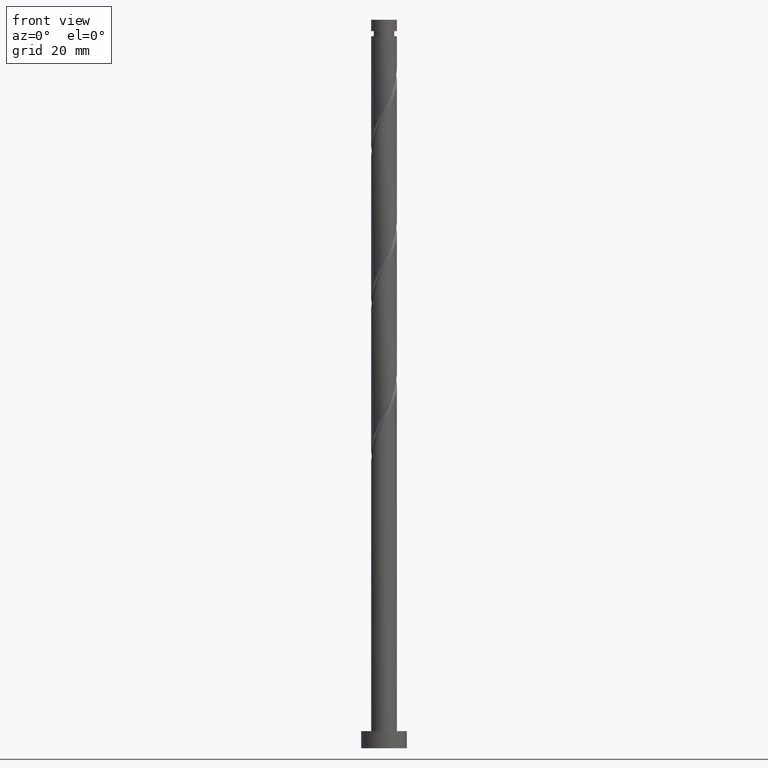
[diagram: clean part render]
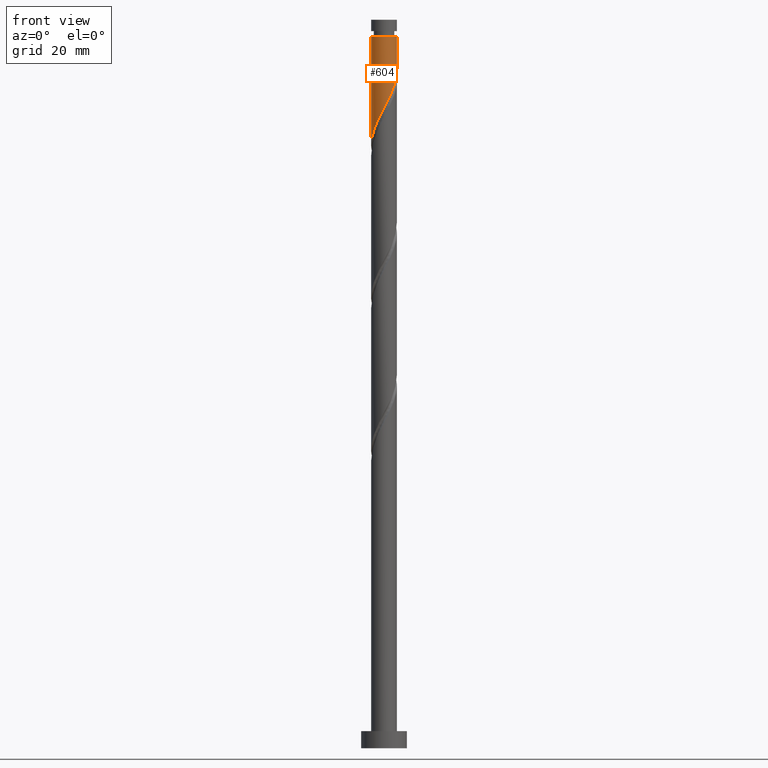
[diagram: same view with one face highlighted and labeled with its STEP entity id]
A machine part, front view. The second image highlights one B-rep face of the part: STEP entity #604.
In plain terms, the highlighted cylindrical surface (edge-blend (fillet) strip) has radius 2.25 mm, axis along (-0, -0, -1).
Its self-contained STEP definition (entity closure, byte-faithful):
#2 = CARTESIAN_POINT ( 'NONE',  ( 2.250000000000000000, -0.06474493467859734896, 118.4709337923257380 ) ) ;
#10 = CARTESIAN_POINT ( 'NONE',  ( 2.227674514516370330, -0.4523486032461999651, 117.7435773177430605 ) ) ;
#21 = CARTESIAN_POINT ( 'NONE',  ( 2.009996715602341499, -1.061633743224247750, 116.5314561056218565 ) ) ;
#28 = VERTEX_POINT ( 'NONE', #584 ) ;
#37 = CARTESIAN_POINT ( 'NONE',  ( 2.249999999999999556, 6.281864695468536464E-16, 118.5930317970439347 ) ) ;
#49 = CARTESIAN_POINT ( 'NONE',  ( 2.249999999999996891, 2.755455298081542313E-16, 124.4102439844097034 ) ) ;
#86 = DIRECTION ( 'NONE',  ( -1.000000000000000000, 0.000000000000000000, 0.000000000000000000 ) ) ;
#111 = CARTESIAN_POINT ( 'NONE',  ( 0.5139386748451190146, -2.214276414538837390, 112.8950924692581879 ) ) ;
#117 = CARTESIAN_POINT ( 'NONE',  ( -1.336880199978458528, -1.838451612741028196, 109.2587288328945760 ) ) ;
#126 = CARTESIAN_POINT ( 'NONE',  ( -2.118597173968805425, -0.8238319100010157436, 106.8344864086521113 ) ) ;
#243 = CARTESIAN_POINT ( 'NONE',  ( -1.568779515954457082, -1.612895170282835799, 108.6526682268339670 ) ) ;
#270 = CARTESIAN_POINT ( 'NONE',  ( -1.050827842467676909, -1.989537847213448618, 109.8647894389551851 ) ) ;
#337 = DIRECTION ( 'NONE',  ( -1.000000000000000000, 0.000000000000000000, 0.000000000000000000 ) ) ;
#373 = ORIENTED_EDGE ( 'NONE', *, *, #993, .F. ) ;
#489 = EDGE_CURVE ( 'NONE', #1416, #590, #923, .T. ) ;
#503 = CARTESIAN_POINT ( 'NONE',  ( 2.118835615059355248, -0.7569911732352238021, 117.1375167116824230 ) ) ;
#509 = CARTESIAN_POINT ( 'NONE',  ( -2.191738273361774958, -0.5087075201735710150, 106.2284258025915165 ) ) ;
#518 = CARTESIAN_POINT ( 'NONE',  ( 1.819738826151650724, -1.323272687164747330, 115.9253954995612190 ) ) ;
#526 = CARTESIAN_POINT ( 'NONE',  ( 0.1916127332030271024, -2.241826166426482914, 112.2890318631975788 ) ) ;
#532 = EDGE_LOOP ( 'NONE', ( #759, #1579, #1483, #373 ) ) ;
#577 = VECTOR ( 'NONE', #1162, 1000.000000000000000 ) ;
#584 = CARTESIAN_POINT ( 'NONE',  ( -2.249999999999999556, 8.286078669737068893E-15, 105.2596984637105919 ) ) ;
#590 = VERTEX_POINT ( 'NONE', #1621 ) ;
#604 = ADVANCED_FACE ( 'NONE', ( #714 ), #1500, .T. ) ;
#657 = CARTESIAN_POINT ( 'NONE',  ( -1.800678831930455193, -1.387338727824644069, 108.0466076207733295 ) ) ;
#694 =( BOUNDED_CURVE ( )  B_SPLINE_CURVE ( 2, ( #770, #2, #1035, #10, #503, #21, #518, #877, #1027, #1043, #756, #111, #526, #1018, #762, #883, #270, #117, #243, #657, #1547, #126, #509, #1394, #1538 ),
 .UNSPECIFIED., .F., .T. ) 
 B_SPLINE_CURVE_WITH_KNOTS ( ( 3, 2, 2, 2, 2, 2, 2, 2, 2, 2, 2, 2, 3 ),
 ( 0.3045252162417512176, 0.3068181818181818232, 0.3181818181818181768, 0.3295454545454545303, 0.3409090909090908839, 0.3522727272727272929, 0.3636363636363636465, 0.3750000000000000000, 0.3863636363636363535, 0.3977272727272727071, 0.4090909090909091161, 0.4204545454545454697, 0.4295252162417514397 ),
 .UNSPECIFIED. ) 
 CURVE ( )  GEOMETRIC_REPRESENTATION_ITEM ( )  RATIONAL_B_SPLINE_CURVE ( ( 0.9061101570135541294, 0.9072237824201363487, 0.9090909090909138346, 0.8998376744372161840, 0.9090909090909138346, 0.8998376744372161840, 0.9090909090909138346, 0.8998376744372161840, 0.9090909090909138346, 0.8998376744372161840, 0.9090909090909138346, 0.8998376744372161840, 0.9090909090909138346, 0.8998376744372161840, 0.9090909090909138346, 0.8998376744372161840, 0.9090909090909138346, 0.8998376744372161840, 0.9090909090909138346, 0.8998376744372161840, 0.9090909090909138346, 0.8998376744372161840, 0.9090909090909138346, 0.9017048011079935588, 0.9061101570135543515 ) ) 
 REPRESENTATION_ITEM ( '' )  );
#703 = EDGE_CURVE ( 'NONE', #590, #28, #1644, .T. ) ;
#714 = FACE_OUTER_BOUND ( 'NONE', #532, .T. ) ;
#756 = CARTESIAN_POINT ( 'NONE',  ( 0.8154464890247281605, -2.097032909502672293, 113.5011530753188111 ) ) ;
#759 = ORIENTED_EDGE ( 'NONE', *, *, #1087, .F. ) ;
#762 = CARTESIAN_POINT ( 'NONE',  ( -0.4477443466979794118, -2.204999999999999627, 111.0769106510763748 ) ) ;
#770 = CARTESIAN_POINT ( 'NONE',  ( 2.249999999999999556, 6.281864695468536464E-16, 118.5930317970439205 ) ) ;
#847 = DIRECTION ( 'NONE',  ( -0.000000000000000000, -0.000000000000000000, -1.000000000000000000 ) ) ;
#861 = DIRECTION ( 'NONE',  ( -0.000000000000000000, -0.000000000000000000, -1.000000000000000000 ) ) ;
#877 = CARTESIAN_POINT ( 'NONE',  ( 1.629480936700959504, -1.584911631105246910, 115.3193348935006242 ) ) ;
#883 = CARTESIAN_POINT ( 'NONE',  ( -0.7647754849568952906, -2.140624081685869928, 110.4708500450157942 ) ) ;
#923 = CIRCLE ( 'NONE', #1646, 2.249999999999996891 ) ;
#956 = VECTOR ( 'NONE', #1253, 1000.000000000000000 ) ;
#993 = EDGE_CURVE ( 'NONE', #1428, #28, #694, .T. ) ;
#1018 = CARTESIAN_POINT ( 'NONE',  ( -0.1307132084390636162, -2.269375918314129326, 111.6829712571369839 ) ) ;
#1027 = CARTESIAN_POINT ( 'NONE',  ( 1.373217619952648016, -1.782350517785876720, 114.7132742874400293 ) ) ;
#1035 = CARTESIAN_POINT ( 'NONE',  ( 2.246276943635557188, -0.1293827364500369226, 118.3496379238036553 ) ) ;
#1043 = CARTESIAN_POINT ( 'NONE',  ( 1.116954303204337640, -1.979789404466506308, 114.1072136813794060 ) ) ;
#1087 = EDGE_CURVE ( 'NONE', #1416, #1428, #1645, .T. ) ;
#1097 = CARTESIAN_POINT ( 'NONE',  ( 0.000000000000000000, 0.000000000000000000, 124.4102439844097034 ) ) ;
#1162 = DIRECTION ( 'NONE',  ( -0.000000000000000000, -0.000000000000000000, -1.000000000000000000 ) ) ;
#1224 = AXIS2_PLACEMENT_3D ( 'NONE', #1484, #847, #337 ) ;
#1253 = DIRECTION ( 'NONE',  ( -0.000000000000000000, -0.000000000000000000, -1.000000000000000000 ) ) ;
#1294 = CARTESIAN_POINT ( 'NONE',  ( 2.250000000000000000, 2.755455298081544285E-16, 127.2999999999999972 ) ) ;
#1394 = CARTESIAN_POINT ( 'NONE',  ( -2.250000000000000444, -0.2576900866165238169, 105.7456584166819056 ) ) ;
#1416 = VERTEX_POINT ( 'NONE', #49 ) ;
#1428 = VERTEX_POINT ( 'NONE', #37 ) ;
#1483 = ORIENTED_EDGE ( 'NONE', *, *, #703, .T. ) ;
#1484 = CARTESIAN_POINT ( 'NONE',  ( 0.000000000000000000, 0.000000000000000000, 127.2999999999999972 ) ) ;
#1500 = CYLINDRICAL_SURFACE ( 'NONE', #1224, 2.250000000000000000 ) ;
#1507 = CARTESIAN_POINT ( 'NONE',  ( -2.250000000000000000, 0.000000000000000000, 127.2999999999999972 ) ) ;
#1538 = CARTESIAN_POINT ( 'NONE',  ( -2.249999999999999556, 8.286078669737070471E-15, 105.2596984637105919 ) ) ;
#1547 = CARTESIAN_POINT ( 'NONE',  ( -1.959638002949629865, -1.105585318912829518, 107.4405470147127488 ) ) ;
#1579 = ORIENTED_EDGE ( 'NONE', *, *, #489, .T. ) ;
#1621 = CARTESIAN_POINT ( 'NONE',  ( -2.249999999999996891, 0.000000000000000000, 124.4102439844097034 ) ) ;
#1644 = LINE ( 'NONE', #1507, #956 ) ;
#1645 = LINE ( 'NONE', #1294, #577 ) ;
#1646 = AXIS2_PLACEMENT_3D ( 'NONE', #1097, #861, #86 ) ;